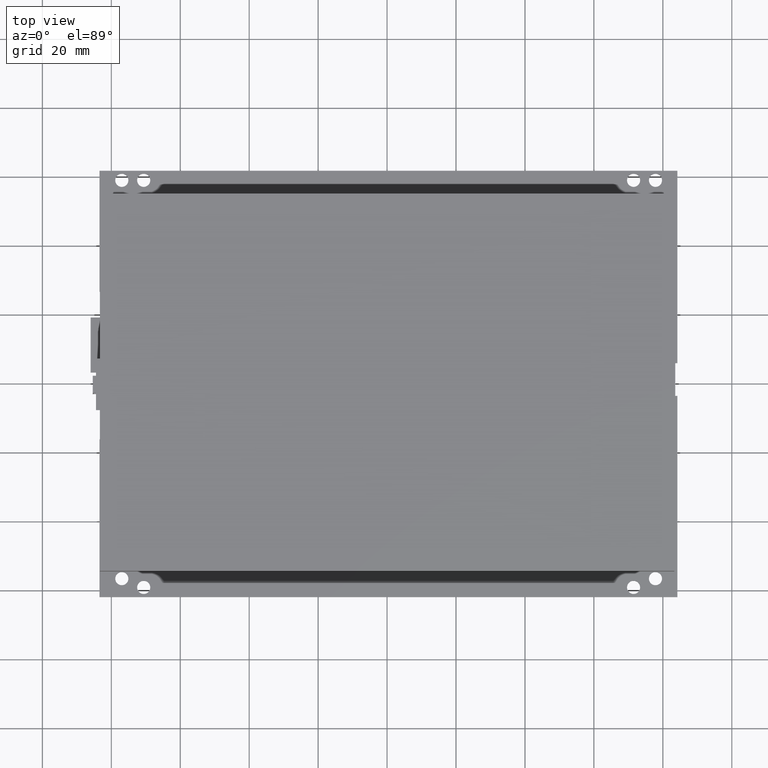
[diagram: clean part render]
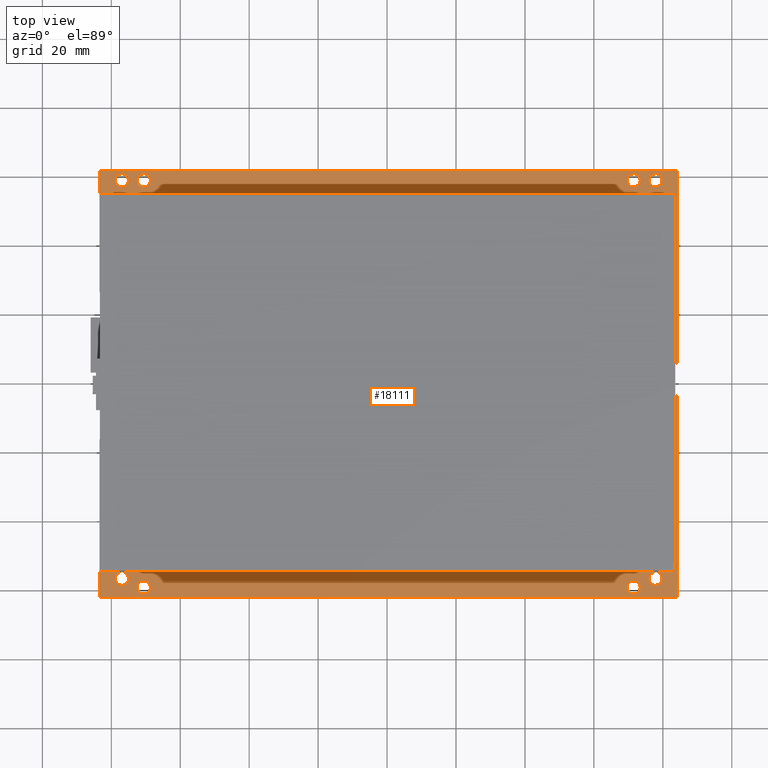
[diagram: same view with one face highlighted and labeled with its STEP entity id]
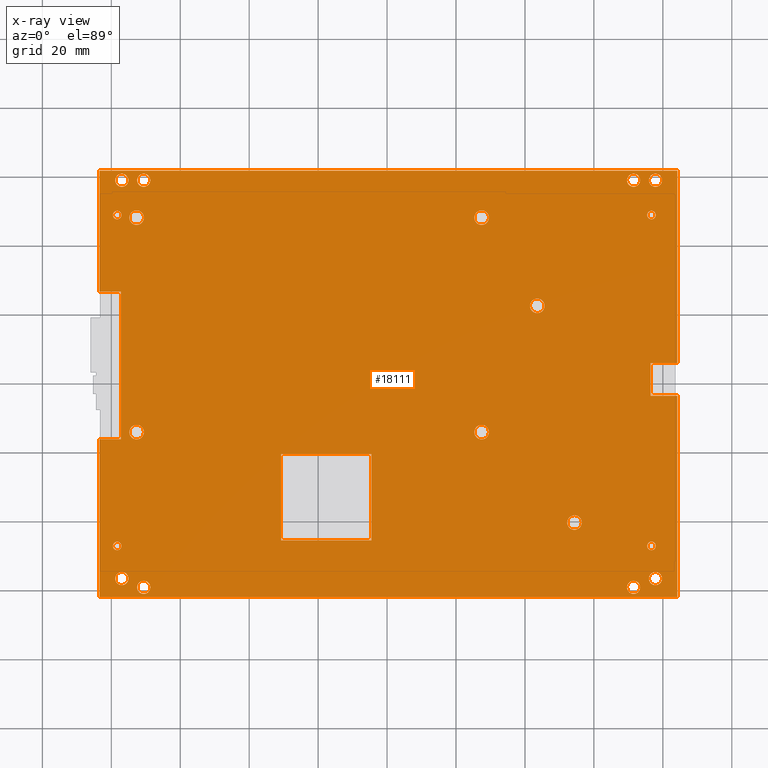
[diagram: x-ray of the same camera — body ghosted, the highlighted face saturated]
A machine part, top view. The second image highlights one B-rep face of the part: STEP entity #18111.
The next image is the same camera in x-ray: the body ghosted, the highlighted face saturated — about 0% of this face is hidden behind the body in this view.
In plain terms, the highlighted planar face has unit normal (0, 0, -1).
Its self-contained STEP definition (entity closure, byte-faithful):
#719 = EDGE_CURVE ( 'NONE', #7650, #7824, #7698, .T. ) ;
#723 = EDGE_CURVE ( 'NONE', #7667, #7646, #7705, .T. ) ;
#727 = EDGE_CURVE ( 'NONE', #7836, #7832, #7768, .T. ) ;
#731 = EDGE_CURVE ( 'NONE', #7826, #7802, #7771, .T. ) ;
#735 = EDGE_CURVE ( 'NONE', #7838, #7833, #7777, .T. ) ;
#739 = EDGE_CURVE ( 'NONE', #7661, #7854, #7783, .T. ) ;
#743 = EDGE_CURVE ( 'NONE', #7822, #7844, #7789, .T. ) ;
#747 = EDGE_CURVE ( 'NONE', #7846, #7828, #7795, .T. ) ;
#751 = EDGE_CURVE ( 'NONE', #7858, #7655, #7132, .T. ) ;
#755 = EDGE_CURVE ( 'NONE', #7641, #7640, #7135, .T. ) ;
#759 = EDGE_CURVE ( 'NONE', #7660, #7656, #7141, .T. ) ;
#763 = EDGE_CURVE ( 'NONE', #7859, #7860, #7147, .T. ) ;
#767 = EDGE_CURVE ( 'NONE', #7863, #7865, #7153, .T. ) ;
#771 = EDGE_CURVE ( 'NONE', #7875, #7878, #7159, .T. ) ;
#775 = EDGE_CURVE ( 'NONE', #7867, #7866, #19383, .T. ) ;
#1059 = EDGE_LOOP ( 'NONE', ( #8311, #8312 ) ) ;
#1061 = EDGE_LOOP ( 'NONE', ( #8313, #8314, #8315, #8316, #8317, #8318, #8319, #8320, #8321, #8322, #8323, #8324 ) ) ;
#1072 = EDGE_LOOP ( 'NONE', ( #8283, #8284 ) ) ;
#1073 = EDGE_LOOP ( 'NONE', ( #8289, #8290 ) ) ;
#1074 = EDGE_LOOP ( 'NONE', ( #8281, #8282 ) ) ;
#1075 = EDGE_LOOP ( 'NONE', ( #8285, #8286 ) ) ;
#1076 = EDGE_LOOP ( 'NONE', ( #8309, #8310 ) ) ;
#1077 = EDGE_LOOP ( 'NONE', ( #8307, #8308 ) ) ;
#1078 = EDGE_LOOP ( 'NONE', ( #8305, #8306 ) ) ;
#1079 = EDGE_LOOP ( 'NONE', ( #8301, #8302 ) ) ;
#1080 = EDGE_LOOP ( 'NONE', ( #8303, #8304 ) ) ;
#1081 = EDGE_LOOP ( 'NONE', ( #8297, #8298 ) ) ;
#1082 = EDGE_LOOP ( 'NONE', ( #8299, #8300 ) ) ;
#1083 = EDGE_LOOP ( 'NONE', ( #8295, #8296 ) ) ;
#1084 = EDGE_LOOP ( 'NONE', ( #8293, #8294 ) ) ;
#1085 = EDGE_LOOP ( 'NONE', ( #8291, #8292 ) ) ;
#1130 = EDGE_LOOP ( 'NONE', ( #8287, #8288 ) ) ;
#1420 = VECTOR ( 'NONE', #11104, 39.37007874015748100 ) ;
#1425 = VECTOR ( 'NONE', #11068, 39.37007874015748100 ) ;
#1430 = VECTOR ( 'NONE', #11132, 39.37007874015748100 ) ;
#1433 = VECTOR ( 'NONE', #11152, 39.37007874015748100 ) ;
#1434 = VECTOR ( 'NONE', #11159, 39.37007874015748100 ) ;
#1438 = VECTOR ( 'NONE', #11206, 39.37007874015748100 ) ;
#1439 = VECTOR ( 'NONE', #11192, 39.37007874015748100 ) ;
#1440 = VECTOR ( 'NONE', #11200, 39.37007874015748100 ) ;
#1441 = VECTOR ( 'NONE', #11212, 39.37007874015748100 ) ;
#1442 = VECTOR ( 'NONE', #11218, 39.37007874015748100 ) ;
#1443 = CIRCLE ( 'NONE', #1446, 0.08299999999999963000 ) ;
#1444 = VECTOR ( 'NONE', #11366, 39.37007874015748100 ) ;
#1445 = CIRCLE ( 'NONE', #1448, 0.08299999999999990700 ) ;
#1446 = AXIS2_PLACEMENT_3D ( 'NONE', #11223, #11224, #11226 ) ;
#1447 = CIRCLE ( 'NONE', #1450, 0.08299999999999976800 ) ;
#1448 = AXIS2_PLACEMENT_3D ( 'NONE', #11229, #11231, #11232 ) ;
#1449 = CIRCLE ( 'NONE', #1452, 0.08299999999999949100 ) ;
#1450 = AXIS2_PLACEMENT_3D ( 'NONE', #11236, #11238, #11240 ) ;
#1451 = CIRCLE ( 'NONE', #1454, 0.08299999999999963000 ) ;
#1452 = AXIS2_PLACEMENT_3D ( 'NONE', #11244, #11246, #11248 ) ;
#1453 = CIRCLE ( 'NONE', #1456, 0.08299999999999963000 ) ;
#1454 = AXIS2_PLACEMENT_3D ( 'NONE', #11252, #11254, #11256 ) ;
#1455 = CIRCLE ( 'NONE', #1458, 0.07500000000000015000 ) ;
#1456 = AXIS2_PLACEMENT_3D ( 'NONE', #11260, #11262, #11263 ) ;
#1457 = CIRCLE ( 'NONE', #1460, 0.07500000000000015000 ) ;
#1458 = AXIS2_PLACEMENT_3D ( 'NONE', #11267, #11269, #11271 ) ;
#1459 = CIRCLE ( 'NONE', #1462, 0.07500000000000015000 ) ;
#1460 = AXIS2_PLACEMENT_3D ( 'NONE', #11275, #11277, #11279 ) ;
#1461 = CIRCLE ( 'NONE', #1464, 0.07500000000000015000 ) ;
#1462 = AXIS2_PLACEMENT_3D ( 'NONE', #11282, #11284, #11286 ) ;
#1463 = CIRCLE ( 'NONE', #1466, 0.07500000000000015000 ) ;
#1464 = AXIS2_PLACEMENT_3D ( 'NONE', #11289, #11291, #11293 ) ;
#1465 = CIRCLE ( 'NONE', #1468, 0.07500000000000015000 ) ;
#1466 = AXIS2_PLACEMENT_3D ( 'NONE', #11297, #11298, #11300 ) ;
#1467 = CIRCLE ( 'NONE', #1470, 0.07500000000000015000 ) ;
#1468 = AXIS2_PLACEMENT_3D ( 'NONE', #11304, #11306, #11308 ) ;
#1469 = CIRCLE ( 'NONE', #1472, 0.07500000000000015000 ) ;
#1470 = AXIS2_PLACEMENT_3D ( 'NONE', #11311, #11313, #11315 ) ;
#1471 = CIRCLE ( 'NONE', #1474, 0.04899999999999993900 ) ;
#1472 = AXIS2_PLACEMENT_3D ( 'NONE', #11319, #11321, #11323 ) ;
#1473 = CIRCLE ( 'NONE', #1476, 0.04899999999999993900 ) ;
#1474 = AXIS2_PLACEMENT_3D ( 'NONE', #11327, #11329, #11331 ) ;
#1475 = CIRCLE ( 'NONE', #1478, 0.04899999999999993900 ) ;
#1476 = AXIS2_PLACEMENT_3D ( 'NONE', #11335, #11337, #11339 ) ;
#1477 = CIRCLE ( 'NONE', #1480, 0.04899999999999993900 ) ;
#1478 = AXIS2_PLACEMENT_3D ( 'NONE', #11344, #11346, #11348 ) ;
#1479 = VECTOR ( 'NONE', #11360, 39.37007874015748100 ) ;
#1480 = AXIS2_PLACEMENT_3D ( 'NONE', #11353, #11355, #11357 ) ;
#1481 = VECTOR ( 'NONE', #11372, 39.37007874015748100 ) ;
#1482 = VECTOR ( 'NONE', #11378, 39.37007874015748100 ) ;
#1483 = VECTOR ( 'NONE', #11383, 39.37007874015748100 ) ;
#1485 = VECTOR ( 'NONE', #11390, 39.37007874015748100 ) ;
#1977 = CARTESIAN_POINT ( 'NONE',  ( 2.124999999999999100, -1.585000000000000200, 0.03599999999999999700 ) ) ;
#1978 = DIRECTION ( 'NONE',  ( 0.0000000000000000000, 0.0000000000000000000, 1.000000000000000000 ) ) ;
#1979 = DIRECTION ( 'NONE',  ( 1.000000000000000000, 0.0000000000000000000, 0.0000000000000000000 ) ) ;
#1989 = CARTESIAN_POINT ( 'NONE',  ( 1.699999999999999300, 0.8899999999999997900, 0.03599999999999999700 ) ) ;
#1990 = DIRECTION ( 'NONE',  ( 0.0000000000000000000, 0.0000000000000000000, 1.000000000000000000 ) ) ;
#1991 = DIRECTION ( 'NONE',  ( 1.000000000000000000, 0.0000000000000000000, 0.0000000000000000000 ) ) ;
#2001 = CARTESIAN_POINT ( 'NONE',  ( 1.063999999999999200, -0.5520000000000002700, 0.03599999999999999700 ) ) ;
#2002 = DIRECTION ( 'NONE',  ( 0.0000000000000000000, 0.0000000000000000000, 1.000000000000000000 ) ) ;
#2003 = DIRECTION ( 'NONE',  ( 1.000000000000000000, 0.0000000000000000000, 0.0000000000000000000 ) ) ;
#2013 = CARTESIAN_POINT ( 'NONE',  ( 1.063999999999998700, 1.897999999999999900, 0.03599999999999999700 ) ) ;
#2014 = DIRECTION ( 'NONE',  ( 0.0000000000000000000, 0.0000000000000000000, 1.000000000000000000 ) ) ;
#2015 = DIRECTION ( 'NONE',  ( 1.000000000000000000, 0.0000000000000000000, 0.0000000000000000000 ) ) ;
#2025 = CARTESIAN_POINT ( 'NONE',  ( -2.876000000000000800, -0.5520000000000002700, 0.03599999999999999700 ) ) ;
#2026 = DIRECTION ( 'NONE',  ( 0.0000000000000000000, 0.0000000000000000000, 1.000000000000000000 ) ) ;
#2027 = DIRECTION ( 'NONE',  ( 1.000000000000000000, 0.0000000000000000000, 0.0000000000000000000 ) ) ;
#2037 = CARTESIAN_POINT ( 'NONE',  ( -2.876000000000000800, 1.897999999999999900, 0.03599999999999999700 ) ) ;
#2038 = DIRECTION ( 'NONE',  ( 0.0000000000000000000, 0.0000000000000000000, 1.000000000000000000 ) ) ;
#2039 = DIRECTION ( 'NONE',  ( 1.000000000000000000, 0.0000000000000000000, 0.0000000000000000000 ) ) ;
#2049 = CARTESIAN_POINT ( 'NONE',  ( 3.049999999999998500, 2.325000000000000600, 0.03599999999999999700 ) ) ;
#2050 = DIRECTION ( 'NONE',  ( 0.0000000000000000000, 0.0000000000000000000, 1.000000000000000000 ) ) ;
#2051 = DIRECTION ( 'NONE',  ( -1.000000000000000000, 0.0000000000000000000, 0.0000000000000000000 ) ) ;
#2061 = CARTESIAN_POINT ( 'NONE',  ( 2.799999999999998000, 2.325000000000000600, 0.03599999999999999700 ) ) ;
#2062 = DIRECTION ( 'NONE',  ( 0.0000000000000000000, 0.0000000000000000000, 1.000000000000000000 ) ) ;
#2063 = DIRECTION ( 'NONE',  ( -1.000000000000000000, 0.0000000000000000000, 0.0000000000000000000 ) ) ;
#2073 = CARTESIAN_POINT ( 'NONE',  ( 3.049999999999998900, -2.224999999999999200, 0.03599999999999999700 ) ) ;
#2074 = DIRECTION ( 'NONE',  ( 0.0000000000000000000, 0.0000000000000000000, 1.000000000000000000 ) ) ;
#2075 = DIRECTION ( 'NONE',  ( -1.000000000000000000, 0.0000000000000000000, 0.0000000000000000000 ) ) ;
#2085 = CARTESIAN_POINT ( 'NONE',  ( 2.799999999999998900, -2.324999999999999300, 0.03599999999999999700 ) ) ;
#2086 = DIRECTION ( 'NONE',  ( 0.0000000000000000000, 0.0000000000000000000, 1.000000000000000000 ) ) ;
#2087 = DIRECTION ( 'NONE',  ( -1.000000000000000000, 0.0000000000000000000, 0.0000000000000000000 ) ) ;
#2097 = CARTESIAN_POINT ( 'NONE',  ( -2.795000000000000800, -2.325000000000000600, 0.03599999999999999700 ) ) ;
#2098 = DIRECTION ( 'NONE',  ( 0.0000000000000000000, 0.0000000000000000000, 1.000000000000000000 ) ) ;
#2099 = DIRECTION ( 'NONE',  ( 1.000000000000000000, 0.0000000000000000000, 0.0000000000000000000 ) ) ;
#2109 = CARTESIAN_POINT ( 'NONE',  ( -3.045000000000000400, -2.225000000000000500, 0.03599999999999999700 ) ) ;
#2110 = DIRECTION ( 'NONE',  ( 0.0000000000000000000, 0.0000000000000000000, 1.000000000000000000 ) ) ;
#2111 = DIRECTION ( 'NONE',  ( 1.000000000000000000, 0.0000000000000000000, 0.0000000000000000000 ) ) ;
#2121 = CARTESIAN_POINT ( 'NONE',  ( -2.795000000000000800, 2.324999999999999700, 0.03599999999999999700 ) ) ;
#2122 = DIRECTION ( 'NONE',  ( 0.0000000000000000000, 0.0000000000000000000, 1.000000000000000000 ) ) ;
#2123 = DIRECTION ( 'NONE',  ( 1.000000000000000000, 0.0000000000000000000, 0.0000000000000000000 ) ) ;
#2133 = CARTESIAN_POINT ( 'NONE',  ( -3.045000000000000800, 2.324999999999999700, 0.03599999999999999700 ) ) ;
#2134 = DIRECTION ( 'NONE',  ( 0.0000000000000000000, 0.0000000000000000000, 1.000000000000000000 ) ) ;
#2135 = DIRECTION ( 'NONE',  ( 1.000000000000000000, 0.0000000000000000000, 0.0000000000000000000 ) ) ;
#2145 = CARTESIAN_POINT ( 'NONE',  ( 3.004000000000000000, -1.852000000000000300, 0.03599999999999999700 ) ) ;
#2146 = DIRECTION ( 'NONE',  ( 0.0000000000000000000, 0.0000000000000000000, 1.000000000000000000 ) ) ;
#2147 = DIRECTION ( 'NONE',  ( 1.000000000000000000, 0.0000000000000000000, 0.0000000000000000000 ) ) ;
#2837 = CARTESIAN_POINT ( 'NONE',  ( -1.226000000000000400, -0.8050000000000006000, 0.03599999999999999700 ) ) ;
#2842 = CARTESIAN_POINT ( 'NONE',  ( -0.1960000000000003100, -0.8050000000000006000, 0.03599999999999999700 ) ) ;
#2844 = CARTESIAN_POINT ( 'NONE',  ( -3.055000000000001000, -0.6320000000000005600, 0.03599999999999999700 ) ) ;
#2846 = CARTESIAN_POINT ( 'NONE',  ( -3.055000000000001000, 1.051999999999999800, 0.03599999999999999700 ) ) ;
#2848 = CARTESIAN_POINT ( 'NONE',  ( -0.1960000000000001700, -1.789000000000000600, 0.03599999999999999700 ) ) ;
#2849 = CARTESIAN_POINT ( 'NONE',  ( 2.993999999999999800, 0.2379999999999997700, 0.03599999999999999700 ) ) ;
#2851 = CARTESIAN_POINT ( 'NONE',  ( 2.993999999999999800, -0.1370000000000004800, 0.03599999999999999700 ) ) ;
#2856 = CARTESIAN_POINT ( 'NONE',  ( -3.300000000000000700, -2.435000000000000100, 0.03599999999999999700 ) ) ;
#2857 = CARTESIAN_POINT ( 'NONE',  ( 3.299999999999998500, -0.1370000000000004800, 0.03599999999999999700 ) ) ;
#2858 = CARTESIAN_POINT ( 'NONE',  ( 3.299999999999998500, -2.435000000000000100, 0.03599999999999999700 ) ) ;
#4067 = CARTESIAN_POINT ( 'NONE',  ( -3.098000000000000800, -1.852000000000001000, 0.03599999999999999700 ) ) ;
#4068 = DIRECTION ( 'NONE',  ( 0.0000000000000000000, 0.0000000000000000000, 1.000000000000000000 ) ) ;
#4069 = DIRECTION ( 'NONE',  ( 1.000000000000000000, 0.0000000000000000000, 0.0000000000000000000 ) ) ;
#4079 = CARTESIAN_POINT ( 'NONE',  ( 3.003999999999999600, 1.928000000000000400, 0.03599999999999999700 ) ) ;
#4080 = DIRECTION ( 'NONE',  ( 0.0000000000000000000, 0.0000000000000000000, 1.000000000000000000 ) ) ;
#4081 = DIRECTION ( 'NONE',  ( 1.000000000000000000, 0.0000000000000000000, 0.0000000000000000000 ) ) ;
#4094 = CARTESIAN_POINT ( 'NONE',  ( -3.098000000000000800, 1.928000000000000400, 0.03599999999999999700 ) ) ;
#4095 = DIRECTION ( 'NONE',  ( 0.0000000000000000000, 0.0000000000000000000, 1.000000000000000000 ) ) ;
#4096 = DIRECTION ( 'NONE',  ( 1.000000000000000000, 0.0000000000000000000, 0.0000000000000000000 ) ) ;
#4119 = CARTESIAN_POINT ( 'NONE',  ( 2.874999999999999100, -2.324999999999999300, 0.03599999999999999700 ) ) ;
#4123 = CARTESIAN_POINT ( 'NONE',  ( 3.299999999999998500, 0.2379999999999997700, 0.03599999999999999700 ) ) ;
#4124 = CARTESIAN_POINT ( 'NONE',  ( -3.300000000000000700, 2.435000000000000100, 0.03599999999999999700 ) ) ;
#4125 = CARTESIAN_POINT ( 'NONE',  ( -3.147000000000000700, 1.928000000000000400, 0.03599999999999999700 ) ) ;
#4126 = CARTESIAN_POINT ( 'NONE',  ( 2.724999999999998800, -2.324999999999999300, 0.03599999999999999700 ) ) ;
#4130 = CARTESIAN_POINT ( 'NONE',  ( 1.782999999999999300, 0.8899999999999997900, 0.03599999999999999700 ) ) ;
#4134 = CARTESIAN_POINT ( 'NONE',  ( 2.041999999999999800, -1.585000000000000200, 0.03599999999999999700 ) ) ;
#4136 = CARTESIAN_POINT ( 'NONE',  ( -1.226000000000000400, -1.789000000000000600, 0.03599999999999999700 ) ) ;
#4139 = CARTESIAN_POINT ( 'NONE',  ( 3.124999999999999100, -2.224999999999999200, 0.03599999999999999700 ) ) ;
#4140 = CARTESIAN_POINT ( 'NONE',  ( -2.720000000000000600, -2.325000000000000600, 0.03599999999999999700 ) ) ;
#4144 = CARTESIAN_POINT ( 'NONE',  ( -2.870000000000001000, -2.325000000000000600, 0.03599999999999999700 ) ) ;
#4145 = CARTESIAN_POINT ( 'NONE',  ( -2.959000000000000500, 1.897999999999999900, 0.03599999999999999700 ) ) ;
#4151 = CARTESIAN_POINT ( 'NONE',  ( 1.616999999999999500, 0.8899999999999997900, 0.03599999999999999700 ) ) ;
#5617 = VERTEX_POINT ( 'NONE', #2837 ) ;
#5618 = VERTEX_POINT ( 'NONE', #2842 ) ;
#5621 = VERTEX_POINT ( 'NONE', #2844 ) ;
#5625 = VERTEX_POINT ( 'NONE', #2846 ) ;
#5627 = VERTEX_POINT ( 'NONE', #2848 ) ;
#5628 = VERTEX_POINT ( 'NONE', #2849 ) ;
#5635 = VERTEX_POINT ( 'NONE', #2856 ) ;
#5636 = VERTEX_POINT ( 'NONE', #2857 ) ;
#5637 = VERTEX_POINT ( 'NONE', #2858 ) ;
#5638 = VERTEX_POINT ( 'NONE', #2851 ) ;
#5882 = AXIS2_PLACEMENT_3D ( 'NONE', #12551, #12554, #12555 ) ;
#6346 = EDGE_CURVE ( 'NONE', #7871, #7870, #19075, .T. ) ;
#6350 = EDGE_CURVE ( 'NONE', #7881, #7874, #19083, .T. ) ;
#6354 = EDGE_CURVE ( 'NONE', #7639, #7873, #19096, .T. ) ;
#7132 = CIRCLE ( 'NONE', #7133, 0.07500000000000015000 ) ;
#7133 = AXIS2_PLACEMENT_3D ( 'NONE', #2073, #2074, #2075 ) ;
#7135 = CIRCLE ( 'NONE', #7139, 0.07500000000000015000 ) ;
#7139 = AXIS2_PLACEMENT_3D ( 'NONE', #2085, #2086, #2087 ) ;
#7141 = CIRCLE ( 'NONE', #7145, 0.07500000000000015000 ) ;
#7145 = AXIS2_PLACEMENT_3D ( 'NONE', #2097, #2098, #2099 ) ;
#7147 = CIRCLE ( 'NONE', #7151, 0.07500000000000015000 ) ;
#7151 = AXIS2_PLACEMENT_3D ( 'NONE', #2109, #2110, #2111 ) ;
#7153 = CIRCLE ( 'NONE', #7157, 0.07500000000000015000 ) ;
#7157 = AXIS2_PLACEMENT_3D ( 'NONE', #2121, #2122, #2123 ) ;
#7159 = CIRCLE ( 'NONE', #7163, 0.07500000000000015000 ) ;
#7163 = AXIS2_PLACEMENT_3D ( 'NONE', #2133, #2134, #2135 ) ;
#7610 = EDGE_LOOP ( 'NONE', ( #8279, #8280 ) ) ;
#7618 = EDGE_LOOP ( 'NONE', ( #8273, #8274, #8275, #8276 ) ) ;
#7620 = EDGE_LOOP ( 'NONE', ( #8277, #8278 ) ) ;
#7637 = VERTEX_POINT ( 'NONE', #4124 ) ;
#7638 = VERTEX_POINT ( 'NONE', #4123 ) ;
#7639 = VERTEX_POINT ( 'NONE', #4125 ) ;
#7640 = VERTEX_POINT ( 'NONE', #4119 ) ;
#7641 = VERTEX_POINT ( 'NONE', #4126 ) ;
#7646 = VERTEX_POINT ( 'NONE', #4130 ) ;
#7650 = VERTEX_POINT ( 'NONE', #4134 ) ;
#7652 = VERTEX_POINT ( 'NONE', #4136 ) ;
#7655 = VERTEX_POINT ( 'NONE', #4139 ) ;
#7656 = VERTEX_POINT ( 'NONE', #4140 ) ;
#7660 = VERTEX_POINT ( 'NONE', #4144 ) ;
#7661 = VERTEX_POINT ( 'NONE', #4145 ) ;
#7667 = VERTEX_POINT ( 'NONE', #4151 ) ;
#7698 = CIRCLE ( 'NONE', #7703, 0.08299999999999963000 ) ;
#7703 = AXIS2_PLACEMENT_3D ( 'NONE', #1977, #1978, #1979 ) ;
#7705 = CIRCLE ( 'NONE', #7709, 0.08299999999999990700 ) ;
#7709 = AXIS2_PLACEMENT_3D ( 'NONE', #1989, #1990, #1991 ) ;
#7768 = CIRCLE ( 'NONE', #7769, 0.08299999999999976800 ) ;
#7769 = AXIS2_PLACEMENT_3D ( 'NONE', #2001, #2002, #2003 ) ;
#7771 = CIRCLE ( 'NONE', #7775, 0.08299999999999949100 ) ;
#7775 = AXIS2_PLACEMENT_3D ( 'NONE', #2013, #2014, #2015 ) ;
#7777 = CIRCLE ( 'NONE', #7781, 0.08299999999999963000 ) ;
#7781 = AXIS2_PLACEMENT_3D ( 'NONE', #2025, #2026, #2027 ) ;
#7783 = CIRCLE ( 'NONE', #7787, 0.08299999999999963000 ) ;
#7787 = AXIS2_PLACEMENT_3D ( 'NONE', #2037, #2038, #2039 ) ;
#7789 = CIRCLE ( 'NONE', #7793, 0.07500000000000015000 ) ;
#7793 = AXIS2_PLACEMENT_3D ( 'NONE', #2049, #2050, #2051 ) ;
#7795 = CIRCLE ( 'NONE', #7799, 0.07500000000000015000 ) ;
#7799 = AXIS2_PLACEMENT_3D ( 'NONE', #2061, #2062, #2063 ) ;
#7802 = VERTEX_POINT ( 'NONE', #9210 ) ;
#7822 = VERTEX_POINT ( 'NONE', #9228 ) ;
#7824 = VERTEX_POINT ( 'NONE', #9230 ) ;
#7826 = VERTEX_POINT ( 'NONE', #9232 ) ;
#7828 = VERTEX_POINT ( 'NONE', #9234 ) ;
#7832 = VERTEX_POINT ( 'NONE', #9238 ) ;
#7833 = VERTEX_POINT ( 'NONE', #9239 ) ;
#7836 = VERTEX_POINT ( 'NONE', #9242 ) ;
#7838 = VERTEX_POINT ( 'NONE', #9244 ) ;
#7844 = VERTEX_POINT ( 'NONE', #9250 ) ;
#7846 = VERTEX_POINT ( 'NONE', #9252 ) ;
#7851 = VERTEX_POINT ( 'NONE', #9257 ) ;
#7854 = VERTEX_POINT ( 'NONE', #9260 ) ;
#7858 = VERTEX_POINT ( 'NONE', #9264 ) ;
#7859 = VERTEX_POINT ( 'NONE', #9265 ) ;
#7860 = VERTEX_POINT ( 'NONE', #9266 ) ;
#7863 = VERTEX_POINT ( 'NONE', #9269 ) ;
#7865 = VERTEX_POINT ( 'NONE', #9271 ) ;
#7866 = VERTEX_POINT ( 'NONE', #9272 ) ;
#7867 = VERTEX_POINT ( 'NONE', #9273 ) ;
#7870 = VERTEX_POINT ( 'NONE', #9276 ) ;
#7871 = VERTEX_POINT ( 'NONE', #9277 ) ;
#7873 = VERTEX_POINT ( 'NONE', #9279 ) ;
#7874 = VERTEX_POINT ( 'NONE', #9280 ) ;
#7875 = VERTEX_POINT ( 'NONE', #9281 ) ;
#7878 = VERTEX_POINT ( 'NONE', #9284 ) ;
#7881 = VERTEX_POINT ( 'NONE', #9287 ) ;
#8273 = ORIENTED_EDGE ( 'NONE', *, *, #17720, .F. ) ;
#8274 = ORIENTED_EDGE ( 'NONE', *, *, #17721, .F. ) ;
#8275 = ORIENTED_EDGE ( 'NONE', *, *, #17722, .F. ) ;
#8276 = ORIENTED_EDGE ( 'NONE', *, *, #17723, .F. ) ;
#8277 = ORIENTED_EDGE ( 'NONE', *, *, #17724, .F. ) ;
#8278 = ORIENTED_EDGE ( 'NONE', *, *, #719, .F. ) ;
#8279 = ORIENTED_EDGE ( 'NONE', *, *, #17725, .F. ) ;
#8280 = ORIENTED_EDGE ( 'NONE', *, *, #723, .F. ) ;
#8281 = ORIENTED_EDGE ( 'NONE', *, *, #17726, .F. ) ;
#8282 = ORIENTED_EDGE ( 'NONE', *, *, #727, .F. ) ;
#8283 = ORIENTED_EDGE ( 'NONE', *, *, #17727, .F. ) ;
#8284 = ORIENTED_EDGE ( 'NONE', *, *, #731, .F. ) ;
#8285 = ORIENTED_EDGE ( 'NONE', *, *, #17728, .F. ) ;
#8286 = ORIENTED_EDGE ( 'NONE', *, *, #735, .F. ) ;
#8287 = ORIENTED_EDGE ( 'NONE', *, *, #17729, .F. ) ;
#8288 = ORIENTED_EDGE ( 'NONE', *, *, #739, .F. ) ;
#8289 = ORIENTED_EDGE ( 'NONE', *, *, #17730, .F. ) ;
#8290 = ORIENTED_EDGE ( 'NONE', *, *, #743, .F. ) ;
#8291 = ORIENTED_EDGE ( 'NONE', *, *, #17731, .F. ) ;
#8292 = ORIENTED_EDGE ( 'NONE', *, *, #747, .F. ) ;
#8293 = ORIENTED_EDGE ( 'NONE', *, *, #17732, .F. ) ;
#8294 = ORIENTED_EDGE ( 'NONE', *, *, #751, .F. ) ;
#8295 = ORIENTED_EDGE ( 'NONE', *, *, #17733, .F. ) ;
#8296 = ORIENTED_EDGE ( 'NONE', *, *, #755, .F. ) ;
#8297 = ORIENTED_EDGE ( 'NONE', *, *, #17734, .F. ) ;
#8298 = ORIENTED_EDGE ( 'NONE', *, *, #759, .F. ) ;
#8299 = ORIENTED_EDGE ( 'NONE', *, *, #17735, .F. ) ;
#8300 = ORIENTED_EDGE ( 'NONE', *, *, #763, .F. ) ;
#8301 = ORIENTED_EDGE ( 'NONE', *, *, #17736, .F. ) ;
#8302 = ORIENTED_EDGE ( 'NONE', *, *, #767, .F. ) ;
#8303 = ORIENTED_EDGE ( 'NONE', *, *, #17737, .F. ) ;
#8304 = ORIENTED_EDGE ( 'NONE', *, *, #771, .F. ) ;
#8305 = ORIENTED_EDGE ( 'NONE', *, *, #17738, .F. ) ;
#8306 = ORIENTED_EDGE ( 'NONE', *, *, #775, .F. ) ;
#8307 = ORIENTED_EDGE ( 'NONE', *, *, #17739, .F. ) ;
#8308 = ORIENTED_EDGE ( 'NONE', *, *, #6346, .F. ) ;
#8309 = ORIENTED_EDGE ( 'NONE', *, *, #17740, .F. ) ;
#8310 = ORIENTED_EDGE ( 'NONE', *, *, #6350, .F. ) ;
#8311 = ORIENTED_EDGE ( 'NONE', *, *, #17741, .F. ) ;
#8312 = ORIENTED_EDGE ( 'NONE', *, *, #6354, .F. ) ;
#8313 = ORIENTED_EDGE ( 'NONE', *, *, #17742, .F. ) ;
#8314 = ORIENTED_EDGE ( 'NONE', *, *, #17743, .F. ) ;
#8315 = ORIENTED_EDGE ( 'NONE', *, *, #17700, .T. ) ;
#8316 = ORIENTED_EDGE ( 'NONE', *, *, #17713, .T. ) ;
#8317 = ORIENTED_EDGE ( 'NONE', *, *, #17706, .T. ) ;
#8318 = ORIENTED_EDGE ( 'NONE', *, *, #17744, .F. ) ;
#8319 = ORIENTED_EDGE ( 'NONE', *, *, #17745, .F. ) ;
#8320 = ORIENTED_EDGE ( 'NONE', *, *, #17746, .F. ) ;
#8321 = ORIENTED_EDGE ( 'NONE', *, *, #17714, .T. ) ;
#8322 = ORIENTED_EDGE ( 'NONE', *, *, #17719, .T. ) ;
#8323 = ORIENTED_EDGE ( 'NONE', *, *, #17710, .T. ) ;
#8324 = ORIENTED_EDGE ( 'NONE', *, *, #17747, .F. ) ;
#9210 = CARTESIAN_POINT ( 'NONE',  ( 1.146999999999998200, 1.897999999999999900, 0.03599999999999999700 ) ) ;
#9228 = CARTESIAN_POINT ( 'NONE',  ( 2.974999999999998300, 2.325000000000000600, 0.03599999999999999700 ) ) ;
#9230 = CARTESIAN_POINT ( 'NONE',  ( 2.207999999999998900, -1.585000000000000200, 0.03599999999999999700 ) ) ;
#9232 = CARTESIAN_POINT ( 'NONE',  ( 0.9809999999999992100, 1.897999999999999900, 0.03599999999999999700 ) ) ;
#9234 = CARTESIAN_POINT ( 'NONE',  ( 2.874999999999998200, 2.325000000000000600, 0.03599999999999999700 ) ) ;
#9238 = CARTESIAN_POINT ( 'NONE',  ( 1.146999999999998900, -0.5520000000000002700, 0.03599999999999999700 ) ) ;
#9239 = CARTESIAN_POINT ( 'NONE',  ( -2.793000000000001000, -0.5520000000000002700, 0.03599999999999999700 ) ) ;
#9242 = CARTESIAN_POINT ( 'NONE',  ( 0.9809999999999993200, -0.5520000000000002700, 0.03599999999999999700 ) ) ;
#9244 = CARTESIAN_POINT ( 'NONE',  ( -2.959000000000000500, -0.5520000000000002700, 0.03599999999999999700 ) ) ;
#9250 = CARTESIAN_POINT ( 'NONE',  ( 3.124999999999998700, 2.325000000000000600, 0.03599999999999999700 ) ) ;
#9252 = CARTESIAN_POINT ( 'NONE',  ( 2.724999999999997900, 2.325000000000000600, 0.03599999999999999700 ) ) ;
#9257 = CARTESIAN_POINT ( 'NONE',  ( -3.300000000000000300, -0.6320000000000005600, 0.03599999999999999700 ) ) ;
#9260 = CARTESIAN_POINT ( 'NONE',  ( -2.793000000000001000, 1.897999999999999900, 0.03599999999999999700 ) ) ;
#9264 = CARTESIAN_POINT ( 'NONE',  ( 2.974999999999998800, -2.224999999999999200, 0.03599999999999999700 ) ) ;
#9265 = CARTESIAN_POINT ( 'NONE',  ( -3.120000000000000600, -2.225000000000000500, 0.03599999999999999700 ) ) ;
#9266 = CARTESIAN_POINT ( 'NONE',  ( -2.970000000000000200, -2.225000000000000500, 0.03599999999999999700 ) ) ;
#9269 = CARTESIAN_POINT ( 'NONE',  ( -2.870000000000001000, 2.324999999999999700, 0.03599999999999999700 ) ) ;
#9271 = CARTESIAN_POINT ( 'NONE',  ( -2.720000000000000600, 2.324999999999999700, 0.03599999999999999700 ) ) ;
#9272 = CARTESIAN_POINT ( 'NONE',  ( 3.052999999999999900, -1.852000000000000300, 0.03599999999999999700 ) ) ;
#9273 = CARTESIAN_POINT ( 'NONE',  ( 2.955000000000000100, -1.852000000000000300, 0.03599999999999999700 ) ) ;
#9276 = CARTESIAN_POINT ( 'NONE',  ( -3.049000000000000800, -1.852000000000001000, 0.03599999999999999700 ) ) ;
#9277 = CARTESIAN_POINT ( 'NONE',  ( -3.147000000000000700, -1.852000000000001000, 0.03599999999999999700 ) ) ;
#9279 = CARTESIAN_POINT ( 'NONE',  ( -3.049000000000000800, 1.928000000000000400, 0.03599999999999999700 ) ) ;
#9280 = CARTESIAN_POINT ( 'NONE',  ( 3.052999999999999500, 1.928000000000000400, 0.03599999999999999700 ) ) ;
#9281 = CARTESIAN_POINT ( 'NONE',  ( -3.120000000000001000, 2.324999999999999700, 0.03599999999999999700 ) ) ;
#9284 = CARTESIAN_POINT ( 'NONE',  ( -2.970000000000000600, 2.324999999999999700, 0.03599999999999999700 ) ) ;
#9287 = CARTESIAN_POINT ( 'NONE',  ( 2.954999999999999600, 1.928000000000000400, 0.03599999999999999700 ) ) ;
#11057 = LINE ( 'NONE', #11063, #1425 ) ;
#11063 = CARTESIAN_POINT ( 'NONE',  ( 3.299999999999998500, -2.435000000000000100, 0.03599999999999999700 ) ) ;
#11068 = DIRECTION ( 'NONE',  ( 0.0000000000000000000, 1.000000000000000000, 0.0000000000000000000 ) ) ;
#11100 = LINE ( 'NONE', #11103, #1420 ) ;
#11103 = CARTESIAN_POINT ( 'NONE',  ( -3.300000000000000700, -2.435000000000000100, 0.03599999999999999700 ) ) ;
#11104 = DIRECTION ( 'NONE',  ( -0.0000000000000000000, -1.000000000000000000, -0.0000000000000000000 ) ) ;
#11127 = LINE ( 'NONE', #11130, #1430 ) ;
#11130 = CARTESIAN_POINT ( 'NONE',  ( 3.299999999999998500, -2.435000000000000100, 0.03599999999999999700 ) ) ;
#11132 = DIRECTION ( 'NONE',  ( 0.0000000000000000000, 1.000000000000000000, 0.0000000000000000000 ) ) ;
#11147 = LINE ( 'NONE', #11150, #1433 ) ;
#11150 = CARTESIAN_POINT ( 'NONE',  ( -3.300000000000000700, 2.435000000000000100, 0.03599999999999999700 ) ) ;
#11152 = DIRECTION ( 'NONE',  ( -1.000000000000000000, -0.0000000000000000000, -0.0000000000000000000 ) ) ;
#11154 = LINE ( 'NONE', #11157, #1434 ) ;
#11157 = CARTESIAN_POINT ( 'NONE',  ( -3.300000000000000700, -2.435000000000000100, 0.03599999999999999700 ) ) ;
#11159 = DIRECTION ( 'NONE',  ( -0.0000000000000000000, -1.000000000000000000, -0.0000000000000000000 ) ) ;
#11171 = LINE ( 'NONE', #11202, #1438 ) ;
#11178 = LINE ( 'NONE', #11208, #1441 ) ;
#11188 = LINE ( 'NONE', #11191, #1439 ) ;
#11191 = CARTESIAN_POINT ( 'NONE',  ( -3.300000000000000700, -2.435000000000000100, 0.03599999999999999700 ) ) ;
#11192 = DIRECTION ( 'NONE',  ( 1.000000000000000000, 0.0000000000000000000, 0.0000000000000000000 ) ) ;
#11194 = LINE ( 'NONE', #11198, #1440 ) ;
#11196 = LINE ( 'NONE', #11214, #1442 ) ;
#11198 = CARTESIAN_POINT ( 'NONE',  ( -1.226000000000000400, -1.789000000000000600, 0.03599999999999999700 ) ) ;
#11200 = DIRECTION ( 'NONE',  ( 1.000000000000000000, 0.0000000000000000000, 0.0000000000000000000 ) ) ;
#11202 = CARTESIAN_POINT ( 'NONE',  ( -1.226000000000000400, -0.8050000000000006000, 0.03599999999999999700 ) ) ;
#11206 = DIRECTION ( 'NONE',  ( 1.388134143122085000E-016, -1.000000000000000000, 0.0000000000000000000 ) ) ;
#11208 = CARTESIAN_POINT ( 'NONE',  ( -1.226000000000000400, -0.8050000000000006000, 0.03599999999999999700 ) ) ;
#11212 = DIRECTION ( 'NONE',  ( -1.000000000000000000, -0.0000000000000000000, -0.0000000000000000000 ) ) ;
#11214 = CARTESIAN_POINT ( 'NONE',  ( -0.1960000000000003100, -0.8050000000000006000, 0.03599999999999999700 ) ) ;
#11218 = DIRECTION ( 'NONE',  ( -1.388134143122085000E-016, 1.000000000000000000, -0.0000000000000000000 ) ) ;
#11223 = CARTESIAN_POINT ( 'NONE',  ( 2.124999999999999100, -1.585000000000000200, 0.03599999999999999700 ) ) ;
#11224 = DIRECTION ( 'NONE',  ( 0.0000000000000000000, 0.0000000000000000000, 1.000000000000000000 ) ) ;
#11226 = DIRECTION ( 'NONE',  ( 1.000000000000000000, 0.0000000000000000000, 0.0000000000000000000 ) ) ;
#11229 = CARTESIAN_POINT ( 'NONE',  ( 1.699999999999999300, 0.8899999999999997900, 0.03599999999999999700 ) ) ;
#11231 = DIRECTION ( 'NONE',  ( 0.0000000000000000000, 0.0000000000000000000, 1.000000000000000000 ) ) ;
#11232 = DIRECTION ( 'NONE',  ( 1.000000000000000000, 0.0000000000000000000, 0.0000000000000000000 ) ) ;
#11236 = CARTESIAN_POINT ( 'NONE',  ( 1.063999999999999200, -0.5520000000000002700, 0.03599999999999999700 ) ) ;
#11238 = DIRECTION ( 'NONE',  ( 0.0000000000000000000, 0.0000000000000000000, 1.000000000000000000 ) ) ;
#11240 = DIRECTION ( 'NONE',  ( 1.000000000000000000, 0.0000000000000000000, 0.0000000000000000000 ) ) ;
#11244 = CARTESIAN_POINT ( 'NONE',  ( 1.063999999999998700, 1.897999999999999900, 0.03599999999999999700 ) ) ;
#11246 = DIRECTION ( 'NONE',  ( 0.0000000000000000000, 0.0000000000000000000, 1.000000000000000000 ) ) ;
#11248 = DIRECTION ( 'NONE',  ( 1.000000000000000000, 0.0000000000000000000, 0.0000000000000000000 ) ) ;
#11252 = CARTESIAN_POINT ( 'NONE',  ( -2.876000000000000800, -0.5520000000000002700, 0.03599999999999999700 ) ) ;
#11254 = DIRECTION ( 'NONE',  ( 0.0000000000000000000, 0.0000000000000000000, 1.000000000000000000 ) ) ;
#11256 = DIRECTION ( 'NONE',  ( 1.000000000000000000, 0.0000000000000000000, 0.0000000000000000000 ) ) ;
#11260 = CARTESIAN_POINT ( 'NONE',  ( -2.876000000000000800, 1.897999999999999900, 0.03599999999999999700 ) ) ;
#11262 = DIRECTION ( 'NONE',  ( 0.0000000000000000000, 0.0000000000000000000, 1.000000000000000000 ) ) ;
#11263 = DIRECTION ( 'NONE',  ( 1.000000000000000000, 0.0000000000000000000, 0.0000000000000000000 ) ) ;
#11267 = CARTESIAN_POINT ( 'NONE',  ( 3.049999999999998500, 2.325000000000000600, 0.03599999999999999700 ) ) ;
#11269 = DIRECTION ( 'NONE',  ( 0.0000000000000000000, 0.0000000000000000000, 1.000000000000000000 ) ) ;
#11271 = DIRECTION ( 'NONE',  ( -1.000000000000000000, 0.0000000000000000000, 0.0000000000000000000 ) ) ;
#11275 = CARTESIAN_POINT ( 'NONE',  ( 2.799999999999998000, 2.325000000000000600, 0.03599999999999999700 ) ) ;
#11277 = DIRECTION ( 'NONE',  ( 0.0000000000000000000, 0.0000000000000000000, 1.000000000000000000 ) ) ;
#11279 = DIRECTION ( 'NONE',  ( -1.000000000000000000, 0.0000000000000000000, 0.0000000000000000000 ) ) ;
#11282 = CARTESIAN_POINT ( 'NONE',  ( 3.049999999999998900, -2.224999999999999200, 0.03599999999999999700 ) ) ;
#11284 = DIRECTION ( 'NONE',  ( 0.0000000000000000000, 0.0000000000000000000, 1.000000000000000000 ) ) ;
#11286 = DIRECTION ( 'NONE',  ( -1.000000000000000000, 0.0000000000000000000, 0.0000000000000000000 ) ) ;
#11289 = CARTESIAN_POINT ( 'NONE',  ( 2.799999999999998900, -2.324999999999999300, 0.03599999999999999700 ) ) ;
#11291 = DIRECTION ( 'NONE',  ( 0.0000000000000000000, 0.0000000000000000000, 1.000000000000000000 ) ) ;
#11293 = DIRECTION ( 'NONE',  ( -1.000000000000000000, 0.0000000000000000000, 0.0000000000000000000 ) ) ;
#11297 = CARTESIAN_POINT ( 'NONE',  ( -2.795000000000000800, -2.325000000000000600, 0.03599999999999999700 ) ) ;
#11298 = DIRECTION ( 'NONE',  ( 0.0000000000000000000, 0.0000000000000000000, 1.000000000000000000 ) ) ;
#11300 = DIRECTION ( 'NONE',  ( 1.000000000000000000, 0.0000000000000000000, 0.0000000000000000000 ) ) ;
#11304 = CARTESIAN_POINT ( 'NONE',  ( -3.045000000000000400, -2.225000000000000500, 0.03599999999999999700 ) ) ;
#11306 = DIRECTION ( 'NONE',  ( 0.0000000000000000000, 0.0000000000000000000, 1.000000000000000000 ) ) ;
#11308 = DIRECTION ( 'NONE',  ( 1.000000000000000000, 0.0000000000000000000, 0.0000000000000000000 ) ) ;
#11311 = CARTESIAN_POINT ( 'NONE',  ( -2.795000000000000800, 2.324999999999999700, 0.03599999999999999700 ) ) ;
#11313 = DIRECTION ( 'NONE',  ( 0.0000000000000000000, 0.0000000000000000000, 1.000000000000000000 ) ) ;
#11315 = DIRECTION ( 'NONE',  ( 1.000000000000000000, 0.0000000000000000000, 0.0000000000000000000 ) ) ;
#11319 = CARTESIAN_POINT ( 'NONE',  ( -3.045000000000000800, 2.324999999999999700, 0.03599999999999999700 ) ) ;
#11321 = DIRECTION ( 'NONE',  ( 0.0000000000000000000, 0.0000000000000000000, 1.000000000000000000 ) ) ;
#11323 = DIRECTION ( 'NONE',  ( 1.000000000000000000, 0.0000000000000000000, 0.0000000000000000000 ) ) ;
#11327 = CARTESIAN_POINT ( 'NONE',  ( 3.004000000000000000, -1.852000000000000300, 0.03599999999999999700 ) ) ;
#11329 = DIRECTION ( 'NONE',  ( 0.0000000000000000000, 0.0000000000000000000, 1.000000000000000000 ) ) ;
#11331 = DIRECTION ( 'NONE',  ( 1.000000000000000000, 0.0000000000000000000, 0.0000000000000000000 ) ) ;
#11335 = CARTESIAN_POINT ( 'NONE',  ( -3.098000000000000800, -1.852000000000001000, 0.03599999999999999700 ) ) ;
#11337 = DIRECTION ( 'NONE',  ( 0.0000000000000000000, 0.0000000000000000000, 1.000000000000000000 ) ) ;
#11339 = DIRECTION ( 'NONE',  ( 1.000000000000000000, 0.0000000000000000000, 0.0000000000000000000 ) ) ;
#11341 = LINE ( 'NONE', #11343, #1479 ) ;
#11343 = CARTESIAN_POINT ( 'NONE',  ( 2.993999999999999800, 0.2379999999999997700, 0.03599999999999999700 ) ) ;
#11344 = CARTESIAN_POINT ( 'NONE',  ( 3.003999999999999600, 1.928000000000000400, 0.03599999999999999700 ) ) ;
#11346 = DIRECTION ( 'NONE',  ( 0.0000000000000000000, 0.0000000000000000000, 1.000000000000000000 ) ) ;
#11348 = DIRECTION ( 'NONE',  ( 1.000000000000000000, 0.0000000000000000000, 0.0000000000000000000 ) ) ;
#11350 = LINE ( 'NONE', #11368, #1481 ) ;
#11351 = LINE ( 'NONE', #11362, #1444 ) ;
#11353 = CARTESIAN_POINT ( 'NONE',  ( -3.098000000000000800, 1.928000000000000400, 0.03599999999999999700 ) ) ;
#11355 = DIRECTION ( 'NONE',  ( 0.0000000000000000000, 0.0000000000000000000, 1.000000000000000000 ) ) ;
#11357 = DIRECTION ( 'NONE',  ( 1.000000000000000000, 0.0000000000000000000, 0.0000000000000000000 ) ) ;
#11358 = LINE ( 'NONE', #11374, #1482 ) ;
#11360 = DIRECTION ( 'NONE',  ( 0.0000000000000000000, -1.000000000000000000, 0.0000000000000000000 ) ) ;
#11362 = CARTESIAN_POINT ( 'NONE',  ( 2.993999999999999800, 0.2379999999999997700, 0.03599999999999999700 ) ) ;
#11364 = LINE ( 'NONE', #11380, #1483 ) ;
#11366 = DIRECTION ( 'NONE',  ( -1.000000000000000000, -0.0000000000000000000, -0.0000000000000000000 ) ) ;
#11368 = CARTESIAN_POINT ( 'NONE',  ( -3.300000000000000300, 1.051999999999999800, 0.03599999999999999700 ) ) ;
#11372 = DIRECTION ( 'NONE',  ( -1.000000000000000000, -0.0000000000000000000, -0.0000000000000000000 ) ) ;
#11374 = CARTESIAN_POINT ( 'NONE',  ( -3.055000000000001000, 1.051999999999999800, 0.03599999999999999700 ) ) ;
#11378 = DIRECTION ( 'NONE',  ( -0.0000000000000000000, 1.000000000000000000, -0.0000000000000000000 ) ) ;
#11380 = CARTESIAN_POINT ( 'NONE',  ( -3.300000000000000300, -0.6320000000000005600, 0.03599999999999999700 ) ) ;
#11383 = DIRECTION ( 'NONE',  ( 1.000000000000000000, 0.0000000000000000000, 0.0000000000000000000 ) ) ;
#11385 = LINE ( 'NONE', #11388, #1485 ) ;
#11388 = CARTESIAN_POINT ( 'NONE',  ( 2.993999999999999800, -0.1370000000000004800, 0.03599999999999999700 ) ) ;
#11390 = DIRECTION ( 'NONE',  ( 1.000000000000000000, 0.0000000000000000000, 0.0000000000000000000 ) ) ;
#12524 = FACE_BOUND ( 'NONE', #1084, .T. ) ;
#12529 = FACE_BOUND ( 'NONE', #7620, .T. ) ;
#12532 = FACE_BOUND ( 'NONE', #1072, .T. ) ;
#12533 = FACE_BOUND ( 'NONE', #7618, .T. ) ;
#12534 = FACE_BOUND ( 'NONE', #1075, .T. ) ;
#12535 = FACE_BOUND ( 'NONE', #1130, .T. ) ;
#12536 = FACE_BOUND ( 'NONE', #7610, .T. ) ;
#12537 = FACE_BOUND ( 'NONE', #1073, .T. ) ;
#12538 = FACE_BOUND ( 'NONE', #1074, .T. ) ;
#12539 = FACE_BOUND ( 'NONE', #1085, .T. ) ;
#12540 = FACE_BOUND ( 'NONE', #1083, .T. ) ;
#12541 = FACE_BOUND ( 'NONE', #1081, .T. ) ;
#12542 = FACE_BOUND ( 'NONE', #1082, .T. ) ;
#12543 = FACE_BOUND ( 'NONE', #1079, .T. ) ;
#12544 = FACE_BOUND ( 'NONE', #1080, .T. ) ;
#12545 = FACE_BOUND ( 'NONE', #1078, .T. ) ;
#12546 = FACE_BOUND ( 'NONE', #1077, .T. ) ;
#12547 = FACE_BOUND ( 'NONE', #1076, .T. ) ;
#12548 = FACE_BOUND ( 'NONE', #1059, .T. ) ;
#12549 = FACE_OUTER_BOUND ( 'NONE', #1061, .T. ) ;
#12551 = CARTESIAN_POINT ( 'NONE',  ( 3.299999999999998500, 2.435000000000000100, 0.03599999999999999700 ) ) ;
#12553 = PLANE ( 'NONE',  #5882 ) ;
#12554 = DIRECTION ( 'NONE',  ( 0.0000000000000000000, 0.0000000000000000000, -1.000000000000000000 ) ) ;
#12555 = DIRECTION ( 'NONE',  ( -1.000000000000000000, 0.0000000000000000000, -0.0000000000000000000 ) ) ;
#13083 = CARTESIAN_POINT ( 'NONE',  ( 3.299999999999998500, 2.435000000000000100, 0.03599999999999999700 ) ) ;
#13087 = CARTESIAN_POINT ( 'NONE',  ( -3.300000000000000300, 1.051999999999999800, 0.03599999999999999700 ) ) ;
#17700 = EDGE_CURVE ( 'NONE', #7638, #18733, #11057, .T. ) ;
#17706 = EDGE_CURVE ( 'NONE', #7637, #18735, #11100, .T. ) ;
#17710 = EDGE_CURVE ( 'NONE', #5637, #5636, #11127, .T. ) ;
#17713 = EDGE_CURVE ( 'NONE', #18733, #7637, #11147, .T. ) ;
#17714 = EDGE_CURVE ( 'NONE', #7851, #5635, #11154, .T. ) ;
#17719 = EDGE_CURVE ( 'NONE', #5635, #5637, #11188, .T. ) ;
#17720 = EDGE_CURVE ( 'NONE', #7652, #5627, #11194, .T. ) ;
#17721 = EDGE_CURVE ( 'NONE', #5617, #7652, #11171, .T. ) ;
#17722 = EDGE_CURVE ( 'NONE', #5618, #5617, #11178, .T. ) ;
#17723 = EDGE_CURVE ( 'NONE', #5627, #5618, #11196, .T. ) ;
#17724 = EDGE_CURVE ( 'NONE', #7824, #7650, #1443, .T. ) ;
#17725 = EDGE_CURVE ( 'NONE', #7646, #7667, #1445, .T. ) ;
#17726 = EDGE_CURVE ( 'NONE', #7832, #7836, #1447, .T. ) ;
#17727 = EDGE_CURVE ( 'NONE', #7802, #7826, #1449, .T. ) ;
#17728 = EDGE_CURVE ( 'NONE', #7833, #7838, #1451, .T. ) ;
#17729 = EDGE_CURVE ( 'NONE', #7854, #7661, #1453, .T. ) ;
#17730 = EDGE_CURVE ( 'NONE', #7844, #7822, #1455, .T. ) ;
#17731 = EDGE_CURVE ( 'NONE', #7828, #7846, #1457, .T. ) ;
#17732 = EDGE_CURVE ( 'NONE', #7655, #7858, #1459, .T. ) ;
#17733 = EDGE_CURVE ( 'NONE', #7640, #7641, #1461, .T. ) ;
#17734 = EDGE_CURVE ( 'NONE', #7656, #7660, #1463, .T. ) ;
#17735 = EDGE_CURVE ( 'NONE', #7860, #7859, #1465, .T. ) ;
#17736 = EDGE_CURVE ( 'NONE', #7865, #7863, #1467, .T. ) ;
#17737 = EDGE_CURVE ( 'NONE', #7878, #7875, #1469, .T. ) ;
#17738 = EDGE_CURVE ( 'NONE', #7866, #7867, #1471, .T. ) ;
#17739 = EDGE_CURVE ( 'NONE', #7870, #7871, #1473, .T. ) ;
#17740 = EDGE_CURVE ( 'NONE', #7874, #7881, #1475, .T. ) ;
#17741 = EDGE_CURVE ( 'NONE', #7873, #7639, #1477, .T. ) ;
#17742 = EDGE_CURVE ( 'NONE', #5628, #5638, #11341, .T. ) ;
#17743 = EDGE_CURVE ( 'NONE', #7638, #5628, #11351, .T. ) ;
#17744 = EDGE_CURVE ( 'NONE', #5625, #18735, #11350, .T. ) ;
#17745 = EDGE_CURVE ( 'NONE', #5621, #5625, #11358, .T. ) ;
#17746 = EDGE_CURVE ( 'NONE', #7851, #5621, #11364, .T. ) ;
#17747 = EDGE_CURVE ( 'NONE', #5638, #5636, #11385, .T. ) ;
#18111 = ADVANCED_FACE ( 'NONE', ( #12533, #12529, #12536, #12538, #12532, #12534, #12535, #12537, #12539, #12524, #12540, #12541, #12542, #12543, #12544, #12545, #12546, #12547, #12548, #12549 ), #12553, .F. ) ;
#18733 = VERTEX_POINT ( 'NONE', #13083 ) ;
#18735 = VERTEX_POINT ( 'NONE', #13087 ) ;
#19075 = CIRCLE ( 'NONE', #19079, 0.04899999999999993900 ) ;
#19079 = AXIS2_PLACEMENT_3D ( 'NONE', #4067, #4068, #4069 ) ;
#19083 = CIRCLE ( 'NONE', #19092, 0.04899999999999993900 ) ;
#19092 = AXIS2_PLACEMENT_3D ( 'NONE', #4079, #4080, #4081 ) ;
#19096 = CIRCLE ( 'NONE', #19105, 0.04899999999999993900 ) ;
#19105 = AXIS2_PLACEMENT_3D ( 'NONE', #4094, #4095, #4096 ) ;
#19383 = CIRCLE ( 'NONE', #19384, 0.04899999999999993900 ) ;
#19384 = AXIS2_PLACEMENT_3D ( 'NONE', #2145, #2146, #2147 ) ;